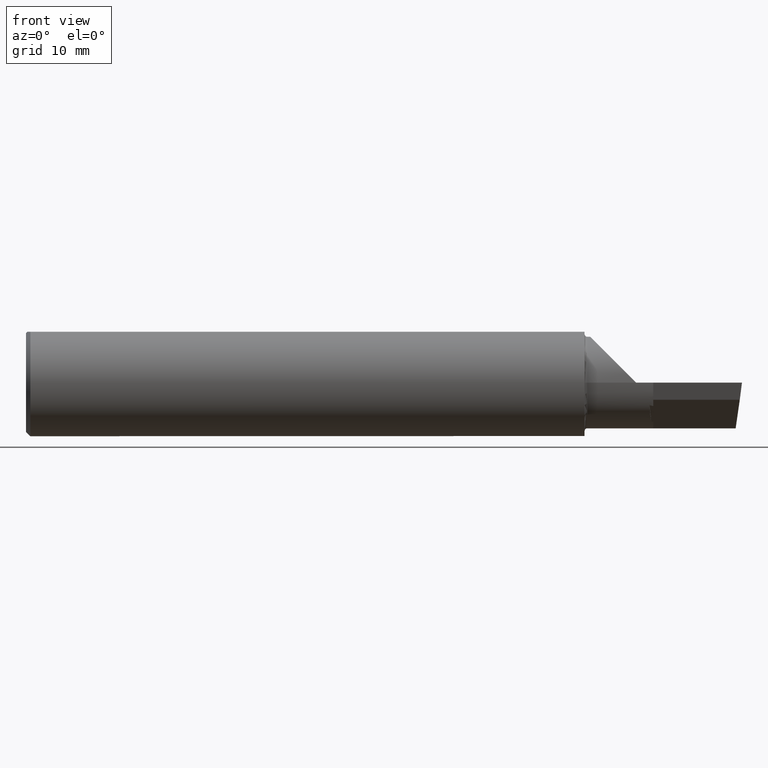
[diagram: clean part render]
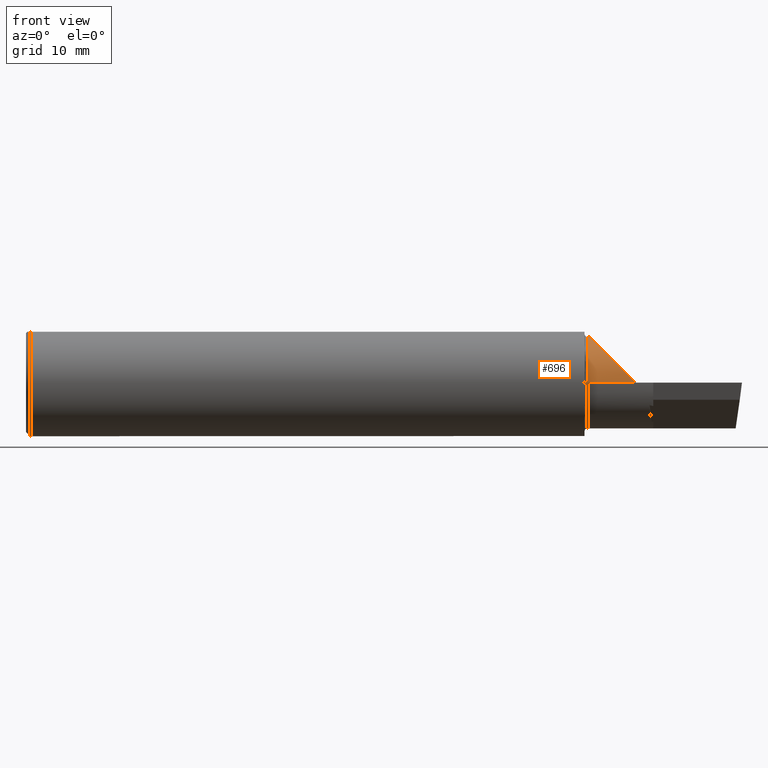
[diagram: same view with one face highlighted and labeled with its STEP entity id]
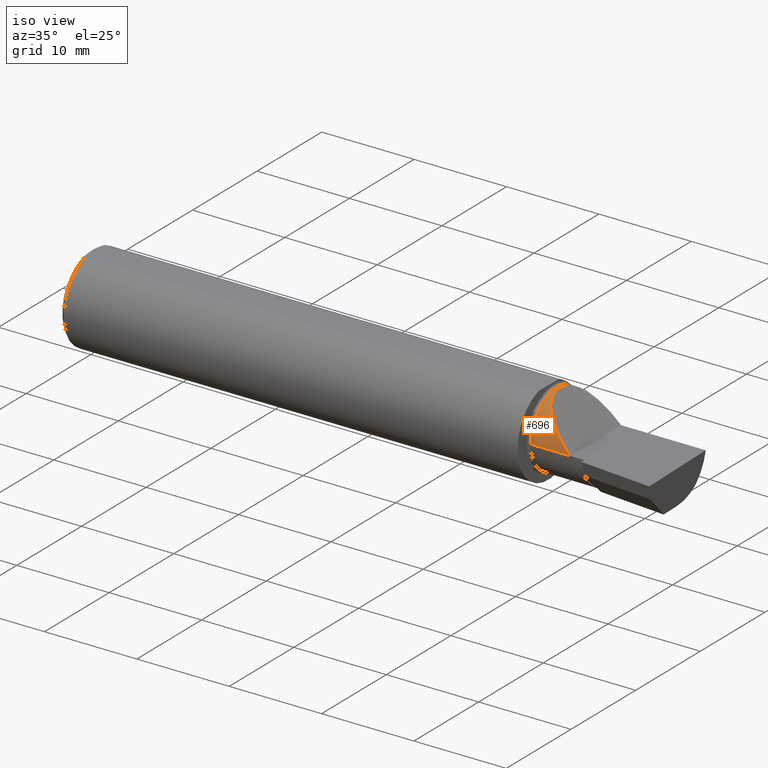
[diagram: same view with one face highlighted and labeled with its STEP entity id]
A machine part, front view. The second image highlights one B-rep face of the part: STEP entity #696.
A second angle (iso view) of the same face is appended — the face is thin or edge-on in the first view.
In plain terms, the highlighted cylindrical surface (partial cylindrical patch) has radius 4.0653 mm, axis along (-1, 0, -0).
Its self-contained STEP definition (entity closure, byte-faithful):
#3 = CARTESIAN_POINT ( 'NONE',  ( 1.902393788885675230, 0.02584108761840278254, 0.2276062111143223043 ) ) ;
#7 = EDGE_CURVE ( 'NONE', #279, #362, #379, .T. ) ;
#17 = DIRECTION ( 'NONE',  ( 1.000000000000000000, -6.829619984160658046E-18, 0.000000000000000000 ) ) ;
#61 = EDGE_CURVE ( 'NONE', #362, #595, #698, .T. ) ;
#92 = AXIS2_PLACEMENT_3D ( 'NONE', #358, #573, #313 ) ;
#93 = DIRECTION ( 'NONE',  ( -6.829619984160658816E-18, -1.000000000000000000, 0.000000000000000000 ) ) ;
#132 = ORIENTED_EDGE ( 'NONE', *, *, #165, .F. ) ;
#165 = EDGE_CURVE ( 'NONE', #280, #279, #235, .T. ) ;
#202 = FACE_OUTER_BOUND ( 'NONE', #351, .T. ) ;
#217 = CARTESIAN_POINT ( 'NONE',  ( -1.093080678464913235E-18, -0.1226499999999999674, 0.000000000000000000 ) ) ;
#235 = LINE ( 'NONE', #350, #411 ) ;
#253 = DIRECTION ( 'NONE',  ( -1.000000000000000000, 6.829619984160658046E-18, -0.000000000000000000 ) ) ;
#279 = VERTEX_POINT ( 'NONE', #523 ) ;
#280 = VERTEX_POINT ( 'NONE', #467 ) ;
#292 = AXIS2_PLACEMENT_3D ( 'NONE', #581, #253, #93 ) ;
#313 = DIRECTION ( 'NONE',  ( 0.000000000000000000, -1.000000000000000000, 0.000000000000000000 ) ) ;
#332 = CARTESIAN_POINT ( 'NONE',  ( 2.129999999999999893, -0.1226500000000000784, 2.290089514405551589E-16 ) ) ;
#337 = ORIENTED_EDGE ( 'NONE', *, *, #61, .F. ) ;
#350 = CARTESIAN_POINT ( 'NONE',  ( 2.075000000000000178, 0.1454917112299465576, 0.1180346748349053593 ) ) ;
#351 = EDGE_LOOP ( 'NONE', ( #337, #526, #132, #517 ) ) ;
#358 = CARTESIAN_POINT ( 'NONE',  ( 1.960000000000000409, 0.03739999999999999575, 0.000000000000000000 ) ) ;
#362 = VERTEX_POINT ( 'NONE', #332 ) ;
#373 = DIRECTION ( 'NONE',  ( -1.000000000000000000, 6.829619984160658046E-18, -0.000000000000000000 ) ) ;
#379 =( BOUNDED_CURVE ( )  B_SPLINE_CURVE ( 3, ( #491, #3, #610, #551 ),
 .UNSPECIFIED., .F., .T. ) 
 B_SPLINE_CURVE_WITH_KNOTS ( ( 4, 4 ),
 ( 5.541729662751386343, 7.853981633974481014 ),
 .UNSPECIFIED. ) 
 CURVE ( )  GEOMETRIC_REPRESENTATION_ITEM ( )  RATIONAL_B_SPLINE_CURVE ( ( 1.000000000000000000, 0.6019254882129727591, 0.6019254882129727591, 1.000000000000000000 ) ) 
 REPRESENTATION_ITEM ( '' )  );
#411 = VECTOR ( 'NONE', #17, 39.37007874015748143 ) ;
#467 = CARTESIAN_POINT ( 'NONE',  ( 1.960000000000000409, 0.1454917112299468074, 0.1180346748349052344 ) ) ;
#491 = CARTESIAN_POINT ( 'NONE',  ( 2.011965325165093965, 0.1454917112299464743, 0.1180346748349054425 ) ) ;
#500 = CARTESIAN_POINT ( 'NONE',  ( 1.960000000000000409, -0.1226500000000000506, 0.000000000000000000 ) ) ;
#517 = ORIENTED_EDGE ( 'NONE', *, *, #685, .F. ) ;
#523 = CARTESIAN_POINT ( 'NONE',  ( 2.011965325165093965, 0.1454917112299464743, 0.1180346748349054425 ) ) ;
#526 = ORIENTED_EDGE ( 'NONE', *, *, #7, .F. ) ;
#551 = CARTESIAN_POINT ( 'NONE',  ( 2.129999999999999893, -0.1226500000000000784, 2.290089514405551589E-16 ) ) ;
#569 = VECTOR ( 'NONE', #373, 39.37007874015748143 ) ;
#573 = DIRECTION ( 'NONE',  ( -1.000000000000000000, 6.829619984160658046E-18, -0.000000000000000000 ) ) ;
#581 = CARTESIAN_POINT ( 'NONE',  ( 0.000000000000000000, 0.03740000000000000269, 0.000000000000000000 ) ) ;
#595 = VERTEX_POINT ( 'NONE', #500 ) ;
#610 = CARTESIAN_POINT ( 'NONE',  ( 1.967758842172328437, -0.1226499999999996759, 0.1622411578276702349 ) ) ;
#653 = CIRCLE ( 'NONE', #92, 0.1600500000000000533 ) ;
#685 = EDGE_CURVE ( 'NONE', #595, #280, #653, .T. ) ;
#687 = CYLINDRICAL_SURFACE ( 'NONE', #292, 0.1600499999999999701 ) ;
#696 = ADVANCED_FACE ( 'NONE', ( #202 ), #687, .T. ) ;
#698 = LINE ( 'NONE', #217, #569 ) ;